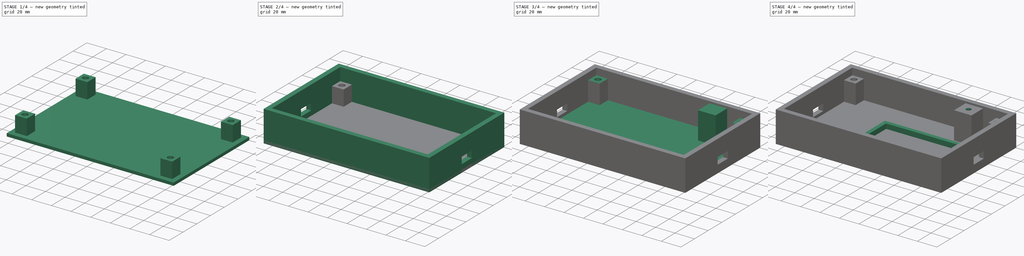
[diagram: build sequence overview — one tinted view per stage of 4, left to right]
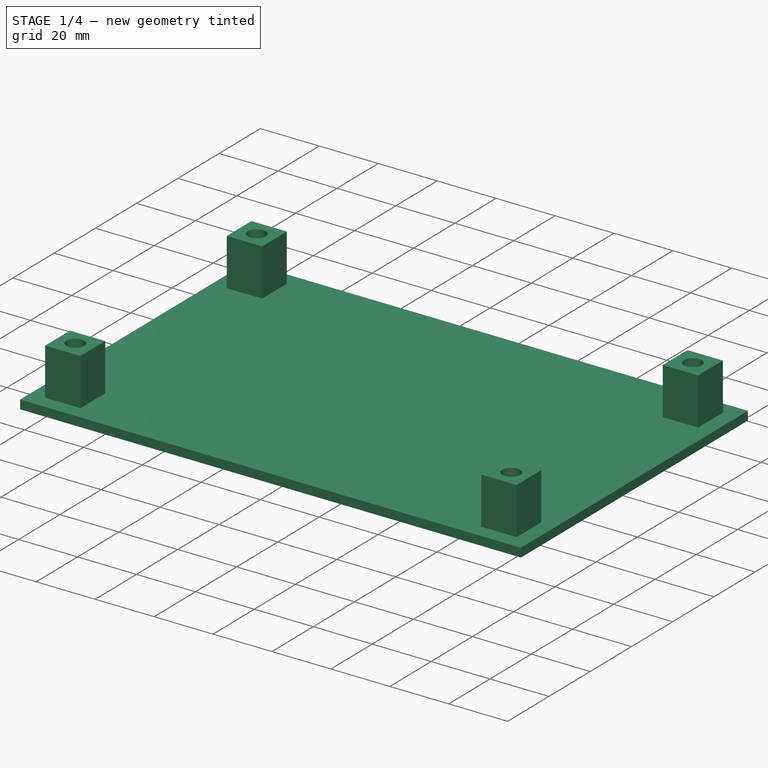
[diagram: stage 1 of 4 — iso view after this stage's code; geometry added in this stage tinted green]
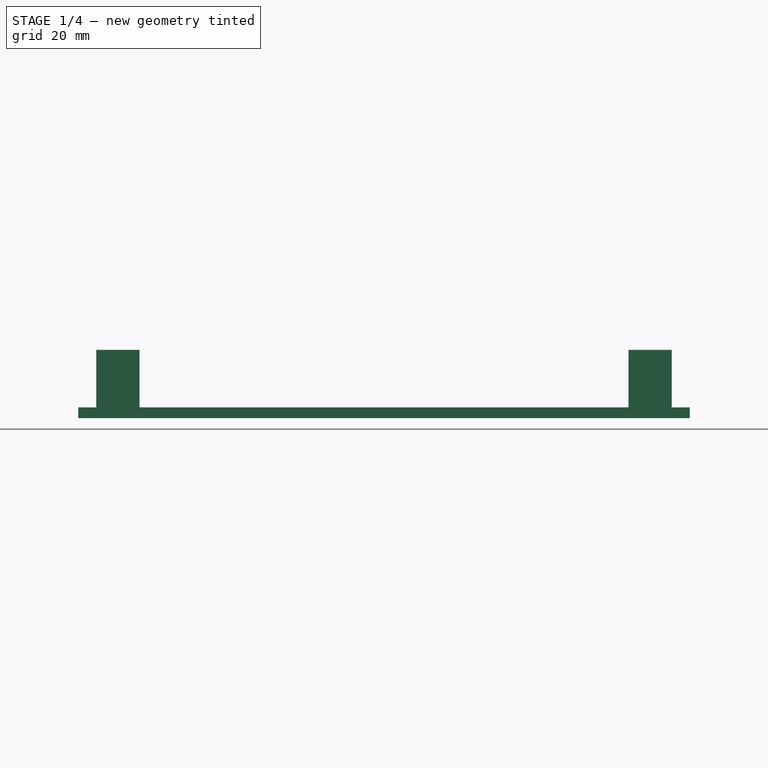
[diagram: stage 1 of 4 — front view after this stage's code; geometry added in this stage tinted green]
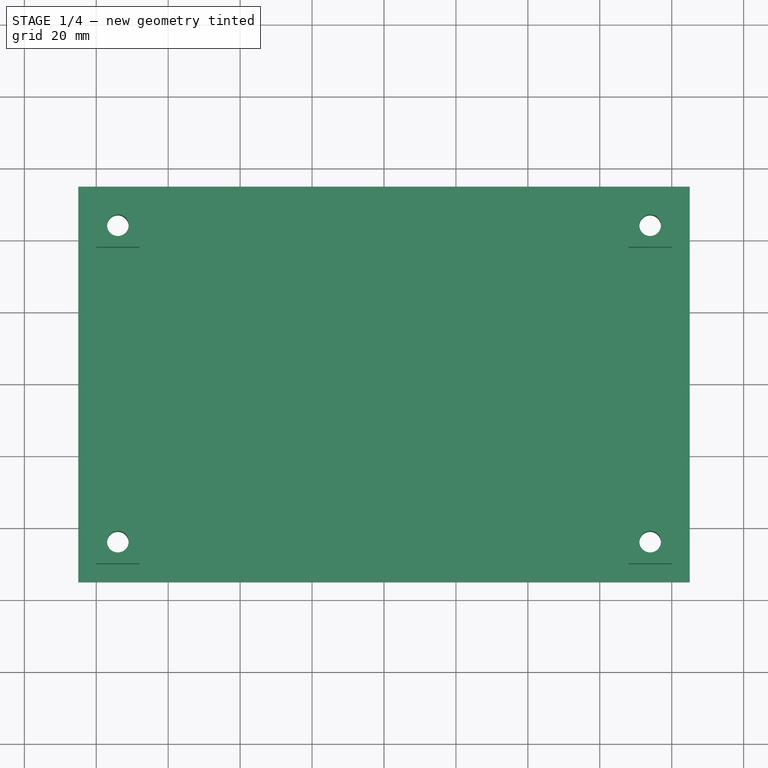
[diagram: stage 1 of 4 — top view after this stage's code; geometry added in this stage tinted green]
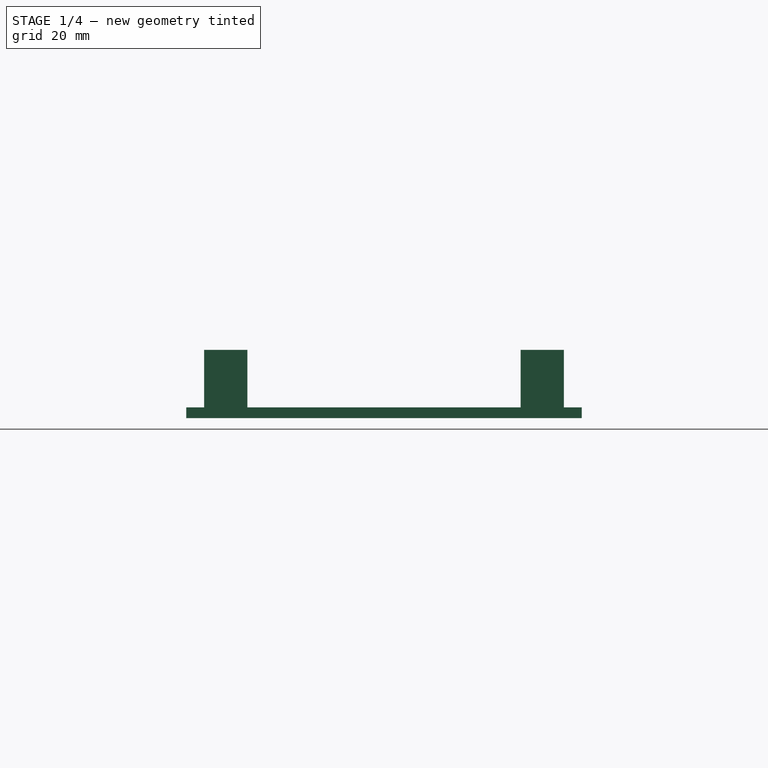
[diagram: stage 1 of 4 — right view after this stage's code; geometry added in this stage tinted green]
FCSTD DOCUMENT  (FreeCAD 0.18.4R)
Label: innovate_lc2_case
License: All rights reserved
LicenseURL: http://en.wikipedia.org/wiki/All_rights_reserved
objects: Sketcher::SketchObject×13, PartDesign::Pad×8, PartDesign::Pocket×5, PartDesign::Body×3, PartDesign::ShapeBinder×1
note: 43 computed .brp shape members not serialized (recipe doc carries the construction recipe); baked Part::Feature solids carry a one-line shape summary decoded from their .brp

FEATURE [PartDesign::Body] Body001  label="SidePanels"
  Group = -> [Sketch007,Pad004,Sketch008,Pocket003]
  Origin = -> Origin001
  Placement = pos=(0,0,5) rot=(0,0,1;0rad)
  Tip = -> Pocket003
FEATURE [Sketcher::SketchObject] Sketch009
  MapMode = 5
  Support = -> [XY_Plane002]
  sketch-geometry (4):
    g0: LineSegment StartX=-85 StartY=55 StartZ=0 EndX=85 EndY=55 EndZ=0
    g1: LineSegment StartX=85 StartY=55 StartZ=0 EndX=85 EndY=-55 EndZ=0
    g2: LineSegment StartX=85 StartY=-55 StartZ=0 EndX=-85 EndY=-55 EndZ=0
    g3: LineSegment StartX=-85 StartY=-55 StartZ=0 EndX=-85 EndY=55 EndZ=0
  constraints (10):
    c: Coincident(g0,g1)
    c: Coincident(g1,g2)
    c: Coincident(g2,g3)
    c: Coincident(g3,g0)
    c: Horizontal(g2)
    c: Vertical(g3)
    c: Symmetric(g0,g0,g-2)
    c: Symmetric(g0,g1,g-1)
    c: DistanceY(g1,g1) = 110
    c: DistanceX(g2,g2) = 170
FEATURE [PartDesign::Pad] Pad005  label="BottomFlat001"
  Length = 3
  Length2 = 100
  Profile = -> Sketch009
  Type = 0
FEATURE [Sketcher::SketchObject] Sketch010
  ExternalGeometry = -> [Pad005]
  MapMode = 5
  Placement = pos=(0,0,3) rot=(0,0,1;0rad)
  Support = -> [Pad005]
  sketch-geometry (20):
    g0: LineSegment [constr] StartX=-80 StartY=50 StartZ=0 EndX=80 EndY=50 EndZ=0
    g1: LineSegment [constr] StartX=80 StartY=50 StartZ=0 EndX=80 EndY=-50 EndZ=0
    g2: LineSegment [constr] StartX=80 StartY=-50 StartZ=0 EndX=-80 EndY=-50 EndZ=0
    g3: LineSegment [constr] StartX=-80 StartY=-50 StartZ=0 EndX=-80 EndY=50 EndZ=0
    g4: LineSegment StartX=-80 StartY=50 StartZ=0 EndX=-68 EndY=50 EndZ=0
    g5: LineSegment StartX=-68 StartY=50 StartZ=0 EndX=-68 EndY=38 EndZ=0
    g6: LineSegment StartX=-68 StartY=38 StartZ=0 EndX=-80 EndY=38 EndZ=0
    g7: LineSegment StartX=-80 StartY=38 StartZ=0 EndX=-80 EndY=50 EndZ=0
    g8: LineSegment StartX=-80 StartY=-50 StartZ=0 EndX=-68 EndY=-50 EndZ=0
    g9: LineSegment StartX=-68 StartY=-50 StartZ=0 EndX=-68 EndY=-38 EndZ=0
    g10: LineSegment StartX=-68 StartY=-38 StartZ=0 EndX=-80 EndY=-38 EndZ=0
    g11: LineSegment StartX=-80 StartY=-38 StartZ=0 EndX=-80 EndY=-50 EndZ=0
    g12: LineSegment StartX=80 StartY=50 StartZ=0 EndX=68 EndY=50 EndZ=0
    g13: LineSegment StartX=68 StartY=50 StartZ=0 EndX=68 EndY=38 EndZ=0
    g14: LineSegment StartX=68 StartY=38 StartZ=0 EndX=80 EndY=38 EndZ=0
    g15: LineSegment StartX=80 StartY=38 StartZ=0 EndX=80 EndY=50 EndZ=0
    g16: LineSegment StartX=80 StartY=-50 StartZ=0 EndX=68 EndY=-50 EndZ=0
    g17: LineSegment StartX=68 StartY=-50 StartZ=0 EndX=68 EndY=-38 EndZ=0
    g18: LineSegment StartX=68 StartY=-38 StartZ=0 EndX=80 EndY=-38 EndZ=0
    g19: LineSegment StartX=80 StartY=-38 StartZ=0 EndX=80 EndY=-50 EndZ=0
  constraints (52):
    c: Coincident(g0,g1)
    c: Coincident(g1,g2)
    c: Coincident(g2,g3)
    c: Coincident(g3,g0)
    c: Horizontal(g2)
    c: Vertical(g3)
    c: Symmetric(g0,g0,g-2)
    c: Symmetric(g0,g1,g-1)
    c: DistanceX(g0,g-4) = 5
    c: DistanceY(g0,g-6) = 5
    c: Coincident(g4,g5)
    c: Coincident(g5,g6)
    c: Coincident(g6,g7)
    c: Coincident(g7,g4)
    c: Horizontal(g4)
    c: Horizontal(g6)
    c: Vertical(g5)
    c: Vertical(g7)
    c: Coincident(g4,g0)
    c: Coincident(g8,g9)
    c: Coincident(g9,g10)
    c: Coincident(g10,g11)
    c: Coincident(g11,g8)
    c: Horizontal(g8)
    c: Horizontal(g10)
    c: Vertical(g9)
    c: Vertical(g11)
    c: Coincident(g8,g2)
    c: Coincident(g12,g13)
    c: Coincident(g13,g14)
    c: Coincident(g14,g15)
    c: Coincident(g15,g12)
    c: Horizontal(g12)
    c: Horizontal(g14)
    c: Vertical(g13)
    c: Vertical(g15)
    c: Coincident(g12,g0)
    c: Coincident(g16,g17)
    c: Coincident(g17,g18)
    c: Coincident(g18,g19)
    c: Coincident(g19,g16)
    c: Horizontal(g16)
    c: Horizontal(g18)
    c: Vertical(g17)
    c: Vertical(g19)
    c: Coincident(g16,g1)
    c: DistanceY(g5,g5) = 12
    c: DistanceX(g6,g6) = 12
    c: Symmetric(g5,g13,g-2)
    c: Symmetric(g9,g5,g-1)
    c: Vertical(g13,g17)
    c: Horizontal(g17,g9)
FEATURE [PartDesign::Pad] Pad006  label="PillarsForScrews001"
  BaseFeature = -> Pad005
  Length = 16
  Length2 = 100
  Profile = -> Sketch010
  Type = 0
FEATURE [Sketcher::SketchObject] Sketch011
  ExternalGeometry = -> [Pad006]
  MapMode = 5
  Placement = pos=(0,0,19) rot=(0,0,1;0rad)
  Support = -> [Pad006]
  sketch-geometry (6):
    g0: Circle CenterX=-74 CenterY=44 CenterZ=0 NormalX=0 NormalY=0 NormalZ=1 AngleXU=0 Radius=3
    g1: Circle CenterX=74 CenterY=44 CenterZ=0 NormalX=0 NormalY=0 NormalZ=1 AngleXU=0 Radius=3
    g2: Circle CenterX=-74 CenterY=-44 CenterZ=0 NormalX=0 NormalY=0 NormalZ=1 AngleXU=0 Radius=3
    g3: Circle CenterX=74 CenterY=-44 CenterZ=0 NormalX=0 NormalY=0 NormalZ=1 AngleXU=0 Radius=3
    g4: LineSegment [constr] StartX=-68 StartY=50 StartZ=0 EndX=-74 EndY=44 EndZ=0
    g5: LineSegment [constr] StartX=-74 StartY=44 StartZ=0 EndX=-80 EndY=38 EndZ=0
  constraints (12):
    c: Symmetric(g1,g0,g-2)
    c: Equal(g0,g1)
    c: Symmetric(g2,g0,g-1)
    c: Equal(g2,g0)
    c: Symmetric(g3,g1,g-1)
    c: Equal(g3,g1)
    c: Coincident(g4,g-4)
    c: Coincident(g4,g0)
    c: Coincident(g5,g0)
    c: Coincident(g5,g-6)
    c: Parallel(g5,g4)
    c: Equal(g4,g5)
FEATURE [PartDesign::Pocket] Pocket004  label="HolesForPillarsScrews001"
  BaseFeature = -> Pad006
  Length = 10
  Length2 = 100
  Profile = -> Sketch011
  Type = 1
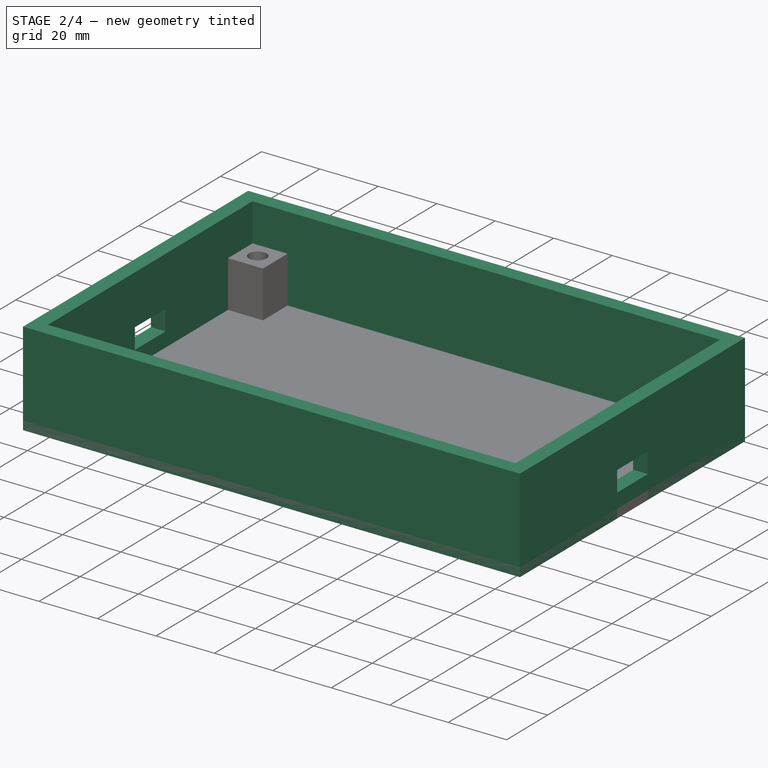
[diagram: stage 2 of 4 — iso view after this stage's code; geometry added in this stage tinted green]
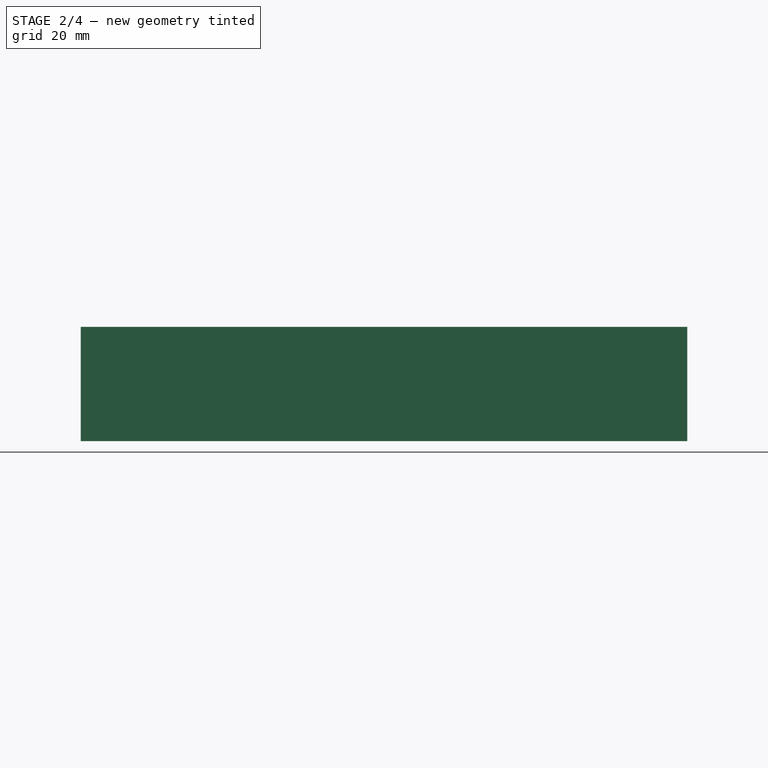
[diagram: stage 2 of 4 — front view after this stage's code; geometry added in this stage tinted green]
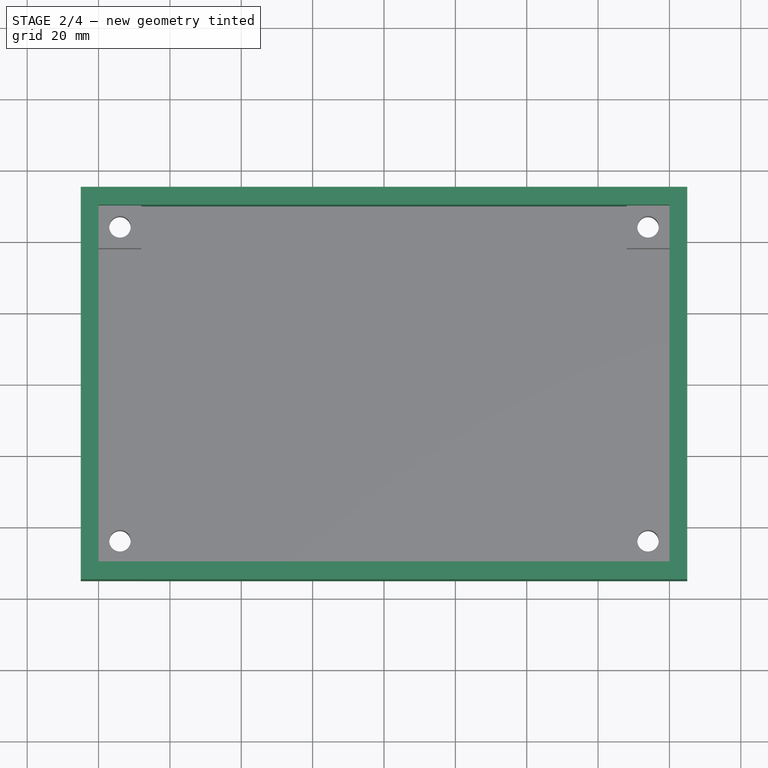
[diagram: stage 2 of 4 — top view after this stage's code; geometry added in this stage tinted green]
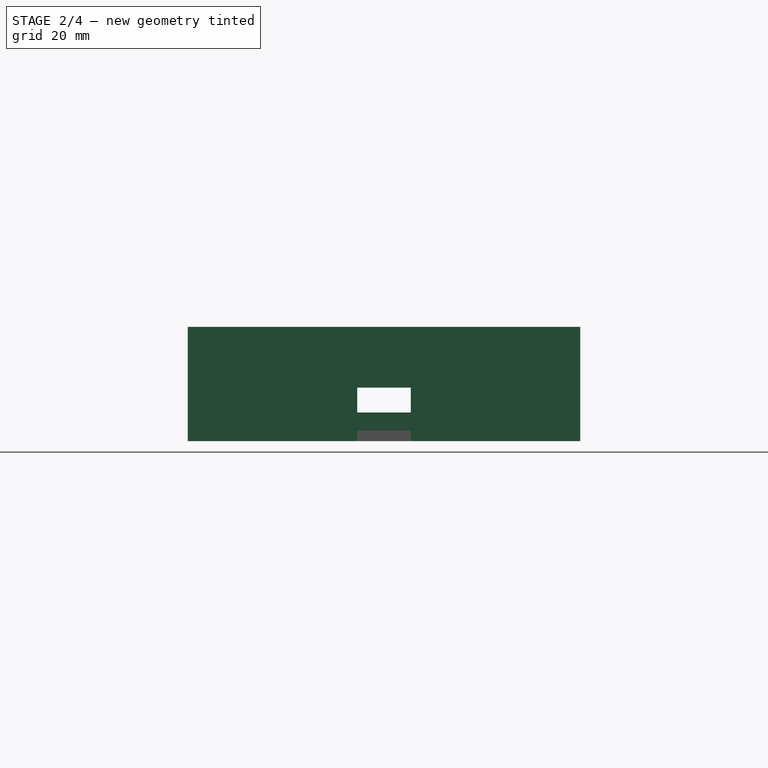
[diagram: stage 2 of 4 — right view after this stage's code; geometry added in this stage tinted green]
FEATURE [Sketcher::SketchObject] Sketch007
  MapMode = 5
  Support = -> [XY_Plane001]
  sketch-geometry (8):
    g0: LineSegment StartX=-85 StartY=55 StartZ=0 EndX=85 EndY=55 EndZ=0
    g1: LineSegment StartX=85 StartY=55 StartZ=0 EndX=85 EndY=-55 EndZ=0
    g2: LineSegment StartX=85 StartY=-55 StartZ=0 EndX=-85 EndY=-55 EndZ=0
    g3: LineSegment StartX=-85 StartY=-55 StartZ=0 EndX=-85 EndY=55 EndZ=0
    g4: LineSegment StartX=-80 StartY=50 StartZ=0 EndX=80 EndY=50 EndZ=0
    g5: LineSegment StartX=80 StartY=50 StartZ=0 EndX=80 EndY=-50 EndZ=0
    g6: LineSegment StartX=80 StartY=-50 StartZ=0 EndX=-80 EndY=-50 EndZ=0
    g7: LineSegment StartX=-80 StartY=-50 StartZ=0 EndX=-80 EndY=50 EndZ=0
  constraints (20):
    c: Coincident(g0,g1)
    c: Coincident(g1,g2)
    c: Coincident(g2,g3)
    c: Coincident(g3,g0)
    c: Horizontal(g2)
    c: Vertical(g3)
    c: Symmetric(g0,g0,g-2)
    c: Symmetric(g0,g1,g-1)
    c: DistanceX(g0,g0) = 170
    c: DistanceY(g1,g1) = 110
    c: Coincident(g4,g5)
    c: Coincident(g5,g6)
    c: Coincident(g6,g7)
    c: Coincident(g7,g4)
    c: Horizontal(g6)
    c: Vertical(g7)
    c: Symmetric(g4,g4,g-2)
    c: Symmetric(g4,g5,g-1)
    c: DistanceY(g4,g0) = 5
    c: DistanceX(g4,g0) = 5
FEATURE [PartDesign::Pad] Pad004  label="FrameAroundCase"
  Length = 32
  Length2 = 100
  Profile = -> Sketch007
  Type = 0
FEATURE [Sketcher::SketchObject] Sketch008
  MapMode = 5
  Placement = pos=(85,0,0) rot=(0.57735,0.57735,0.57735;2.0944rad)
  Support = -> [Pad004]
  sketch-geometry (4):
    g0: LineSegment StartX=-7.5 StartY=0 StartZ=0 EndX=7.5 EndY=0 EndZ=0
    g1: LineSegment StartX=7.5 StartY=0 StartZ=0 EndX=7.5 EndY=15 EndZ=0
    g2: LineSegment StartX=7.5 StartY=15 StartZ=0 EndX=-7.5 EndY=15 EndZ=0
    g3: LineSegment StartX=-7.5 StartY=15 StartZ=0 EndX=-7.5 EndY=0 EndZ=0
  constraints (11):
    c: Coincident(g0,g1)
    c: Coincident(g1,g2)
    c: Coincident(g2,g3)
    c: Coincident(g3,g0)
    c: Vertical(g1)
    c: PointOnObject(g0,g-1)
    c: DistanceY(g1,g1) = 15
    c: DistanceX(g2,g2) = 15
    c: Equal(g1,g3)
    c: Equal(g2,g0)
    c: Symmetric(g0,g0,g-2)
FEATURE [PartDesign::Pocket] Pocket003
  BaseFeature = -> Pad004
  Length = 5
  Length2 = 100
  Profile = -> Sketch008
  Type = 1
FEATURE [PartDesign::ShapeBinder] CopyPocket004
  TraceSupport = false
FEATURE [PartDesign::Body] Body  label="BottomMountingPlateBody"
  Group = -> [Sketch,Pad,Sketch001,Pad001,Sketch002,Pocket,Sketch003,Pad002,Sketch004,Pocket001,Sketch005,Pad003,Sketch006,Pocket002,CopyPocket004]
  Origin = -> Origin
  Tip = -> Pocket002
FEATURE [Sketcher::SketchObject] Sketch012
  ExternalGeometry = -> [Pocket004]
  MapMode = 5
  Support = -> [XY_Plane002]
  sketch-geometry (8):
    g0: LineSegment StartX=-85 StartY=55 StartZ=0 EndX=85 EndY=55 EndZ=0
    g1: LineSegment StartX=85 StartY=55 StartZ=0 EndX=85 EndY=-55 EndZ=0
    g2: LineSegment StartX=85 StartY=-55 StartZ=0 EndX=-85 EndY=-55 EndZ=0
    g3: LineSegment StartX=-85 StartY=-55 StartZ=0 EndX=-85 EndY=55 EndZ=0
    g4: LineSegment StartX=-80 StartY=50 StartZ=0 EndX=80 EndY=50 EndZ=0
    g5: LineSegment StartX=80 StartY=50 StartZ=0 EndX=80 EndY=-50 EndZ=0
    g6: LineSegment StartX=80 StartY=-50 StartZ=0 EndX=-80 EndY=-50 EndZ=0
    g7: LineSegment StartX=-80 StartY=-50 StartZ=0 EndX=-80 EndY=50 EndZ=0
  constraints (20):
    c: Coincident(g0,g1)
    c: Coincident(g1,g2)
    c: Coincident(g2,g3)
    c: Coincident(g3,g0)
    c: Horizontal(g0)
    c: Horizontal(g2)
    c: Vertical(g1)
    c: Vertical(g3)
    c: Coincident(g0,g-4)
    c: Coincident(g1,g-6)
    c: Coincident(g4,g5)
    c: Coincident(g5,g6)
    c: Coincident(g6,g7)
    c: Coincident(g7,g4)
    c: Horizontal(g4)
    c: Horizontal(g6)
    c: Vertical(g5)
    c: Vertical(g7)
    c: Coincident(g4,g-14)
    c: Coincident(g5,g-10)
FEATURE [PartDesign::Pad] Pad007  label="TopFrame"
  BaseFeature = -> Pocket004
  Length = 8
  Length2 = 100
  Profile = -> Sketch012
  Type = 0
FEATURE [PartDesign::Body] Body002  label="TopCover"
  Group = -> [Sketch009,Pad005,Sketch010,Pad006,Sketch011,Pocket004,Sketch012,Pad007]
  Origin = -> Origin002
  Placement = pos=(0,2e-14,45) rot=(1,0,0;3.14159rad)
  Tip = -> Pad007
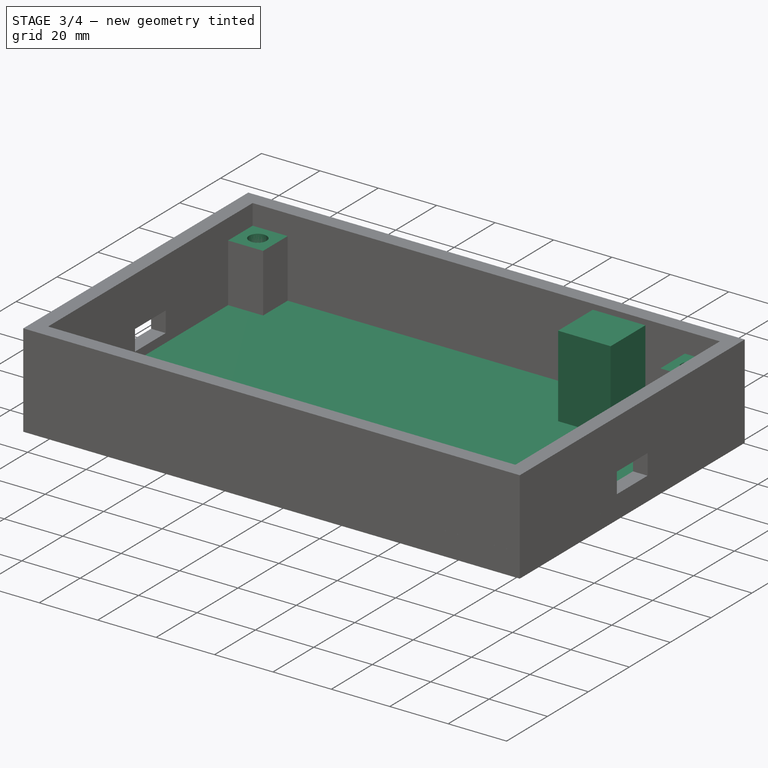
[diagram: stage 3 of 4 — iso view after this stage's code; geometry added in this stage tinted green]
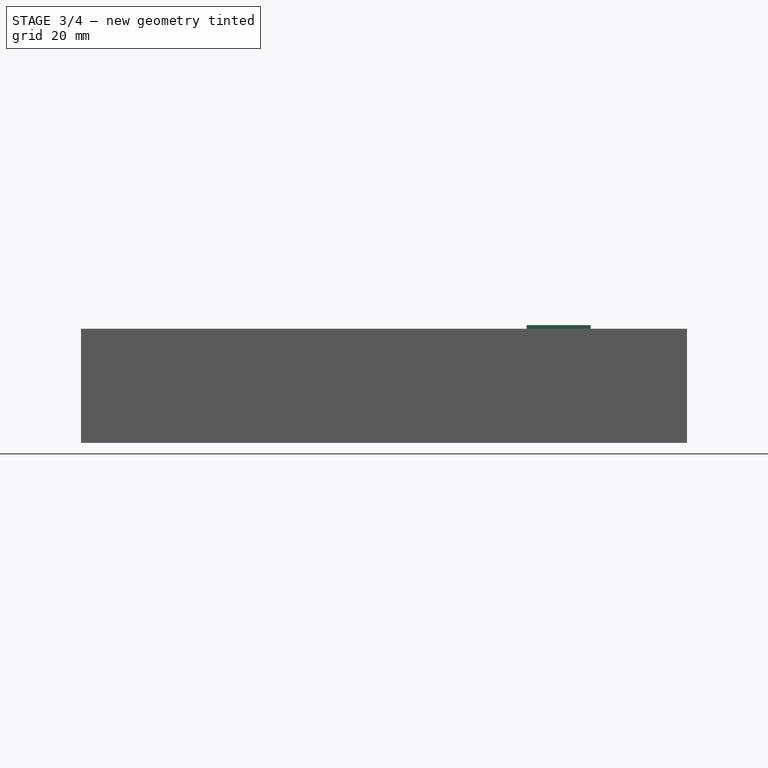
[diagram: stage 3 of 4 — front view after this stage's code; geometry added in this stage tinted green]
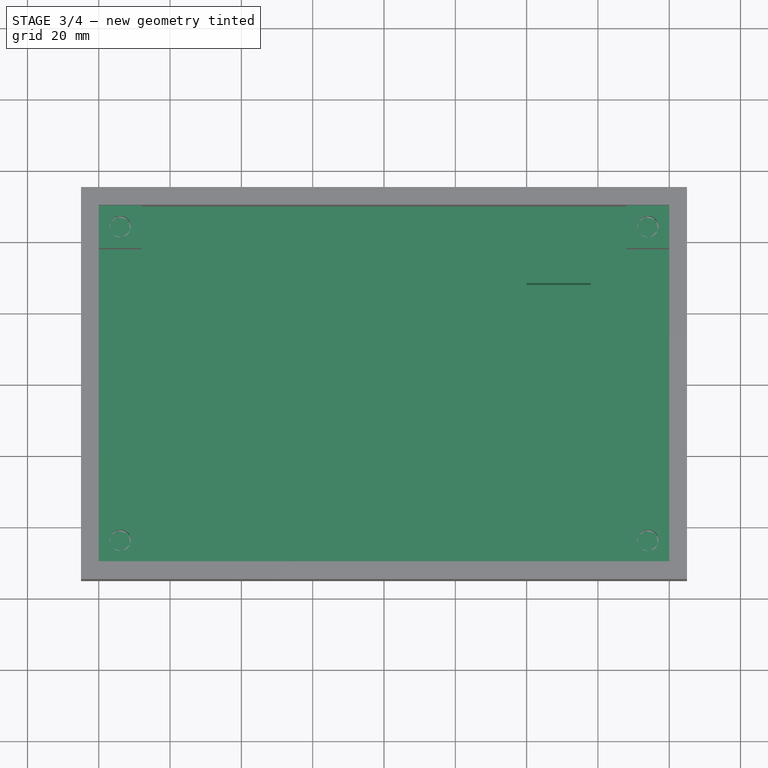
[diagram: stage 3 of 4 — top view after this stage's code; geometry added in this stage tinted green]
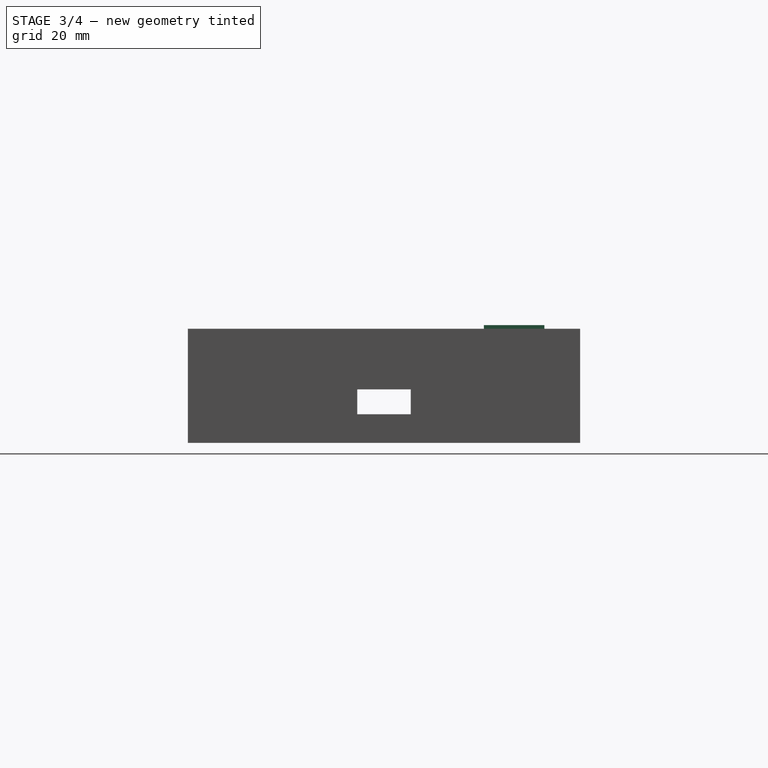
[diagram: stage 3 of 4 — right view after this stage's code; geometry added in this stage tinted green]
FEATURE [Sketcher::SketchObject] Sketch
  MapMode = 5
  Support = -> [XY_Plane]
  sketch-geometry (4):
    g0: LineSegment StartX=-85 StartY=55 StartZ=0 EndX=85 EndY=55 EndZ=0
    g1: LineSegment StartX=85 StartY=55 StartZ=0 EndX=85 EndY=-55 EndZ=0
    g2: LineSegment StartX=85 StartY=-55 StartZ=0 EndX=-85 EndY=-55 EndZ=0
    g3: LineSegment StartX=-85 StartY=-55 StartZ=0 EndX=-85 EndY=55 EndZ=0
  constraints (10):
    c: Coincident(g0,g1)
    c: Coincident(g1,g2)
    c: Coincident(g2,g3)
    c: Coincident(g3,g0)
    c: Horizontal(g2)
    c: Vertical(g3)
    c: Symmetric(g0,g0,g-2)
    c: Symmetric(g0,g1,g-1)
    c: DistanceY(g1,g1) = 110
    c: DistanceX(g2,g2) = 170
FEATURE [PartDesign::Pad] Pad  label="BottomFlat"
  Length = 5
  Length2 = 100
  Profile = -> Sketch
  Type = 0
FEATURE [Sketcher::SketchObject] Sketch001
  ExternalGeometry = -> [Pad]
  MapMode = 5
  Placement = pos=(0,0,5) rot=(0,0,1;0rad)
  Support = -> [Pad]
  sketch-geometry (20):
    g0: LineSegment [constr] StartX=-80 StartY=50 StartZ=0 EndX=80 EndY=50 EndZ=0
    g1: LineSegment [constr] StartX=80 StartY=50 StartZ=0 EndX=80 EndY=-50 EndZ=0
    g2: LineSegment [constr] StartX=80 StartY=-50 StartZ=0 EndX=-80 EndY=-50 EndZ=0
    g3: LineSegment [constr] StartX=-80 StartY=-50 StartZ=0 EndX=-80 EndY=50 EndZ=0
    g4: LineSegment StartX=-80 StartY=50 StartZ=0 EndX=-68 EndY=50 EndZ=0
    g5: LineSegment StartX=-68 StartY=50 StartZ=0 EndX=-68 EndY=38 EndZ=0
    g6: LineSegment StartX=-68 StartY=38 StartZ=0 EndX=-80 EndY=38 EndZ=0
    g7: LineSegment StartX=-80 StartY=38 StartZ=0 EndX=-80 EndY=50 EndZ=0
    g8: LineSegment StartX=-80 StartY=-50 StartZ=0 EndX=-68 EndY=-50 EndZ=0
    g9: LineSegment StartX=-68 StartY=-50 StartZ=0 EndX=-68 EndY=-38 EndZ=0
    g10: LineSegment StartX=-68 StartY=-38 StartZ=0 EndX=-80 EndY=-38 EndZ=0
    g11: LineSegment StartX=-80 StartY=-38 StartZ=0 EndX=-80 EndY=-50 EndZ=0
    g12: LineSegment StartX=80 StartY=50 StartZ=0 EndX=68 EndY=50 EndZ=0
    g13: LineSegment StartX=68 StartY=50 StartZ=0 EndX=68 EndY=38 EndZ=0
    g14: LineSegment StartX=68 StartY=38 StartZ=0 EndX=80 EndY=38 EndZ=0
    g15: LineSegment StartX=80 StartY=38 StartZ=0 EndX=80 EndY=50 EndZ=0
    g16: LineSegment StartX=80 StartY=-50 StartZ=0 EndX=68 EndY=-50 EndZ=0
    g17: LineSegment StartX=68 StartY=-50 StartZ=0 EndX=68 EndY=-38 EndZ=0
    g18: LineSegment StartX=68 StartY=-38 StartZ=0 EndX=80 EndY=-38 EndZ=0
    g19: LineSegment StartX=80 StartY=-38 StartZ=0 EndX=80 EndY=-50 EndZ=0
  constraints (52):
    c: Coincident(g0,g1)
    c: Coincident(g1,g2)
    c: Coincident(g2,g3)
    c: Coincident(g3,g0)
    c: Horizontal(g2)
    c: Vertical(g3)
    c: Symmetric(g0,g0,g-2)
    c: Symmetric(g0,g1,g-1)
    c: DistanceX(g0,g-4) = 5
    c: DistanceY(g0,g-6) = 5
    c: Coincident(g4,g5)
    c: Coincident(g5,g6)
    c: Coincident(g6,g7)
    c: Coincident(g7,g4)
    c: Horizontal(g4)
    c: Horizontal(g6)
    c: Vertical(g5)
    c: Vertical(g7)
    c: Coincident(g4,g0)
    c: Coincident(g8,g9)
    c: Coincident(g9,g10)
    c: Coincident(g10,g11)
    c: Coincident(g11,g8)
    c: Horizontal(g8)
    c: Horizontal(g10)
    c: Vertical(g9)
    c: Vertical(g11)
    c: Coincident(g8,g2)
    c: Coincident(g12,g13)
    c: Coincident(g13,g14)
    c: Coincident(g14,g15)
    c: Coincident(g15,g12)
    c: Horizontal(g12)
    c: Horizontal(g14)
    c: Vertical(g13)
    c: Vertical(g15)
    c: Coincident(g12,g0)
    c: Coincident(g16,g17)
    c: Coincident(g17,g18)
    c: Coincident(g18,g19)
    c: Coincident(g19,g16)
    c: Horizontal(g16)
    c: Horizontal(g18)
    c: Vertical(g17)
    c: Vertical(g19)
    c: Coincident(g16,g1)
    c: DistanceY(g5,g5) = 12
    c: DistanceX(g6,g6) = 12
    c: Symmetric(g5,g13,g-2)
    c: Symmetric(g9,g5,g-1)
    c: Vertical(g13,g17)
    c: Horizontal(g17,g9)
FEATURE [PartDesign::Pad] Pad001  label="PillarsForScrews"
  BaseFeature = -> Pad
  Length = 20
  Length2 = 100
  Profile = -> Sketch001
  Type = 0
FEATURE [Sketcher::SketchObject] Sketch002
  ExternalGeometry = -> [Pad001]
  MapMode = 5
  Placement = pos=(0,0,25) rot=(0,0,1;0rad)
  Support = -> [Pad001]
  sketch-geometry (6):
    g0: Circle CenterX=-74 CenterY=44 CenterZ=0 NormalX=0 NormalY=0 NormalZ=1 AngleXU=0 Radius=3
    g1: Circle CenterX=74 CenterY=44 CenterZ=0 NormalX=0 NormalY=0 NormalZ=1 AngleXU=0 Radius=3
    g2: Circle CenterX=-74 CenterY=-44 CenterZ=0 NormalX=0 NormalY=0 NormalZ=1 AngleXU=0 Radius=3
    g3: Circle CenterX=74 CenterY=-44 CenterZ=0 NormalX=0 NormalY=0 NormalZ=1 AngleXU=0 Radius=3
    g4: LineSegment [constr] StartX=-68 StartY=50 StartZ=0 EndX=-74 EndY=44 EndZ=0
    g5: LineSegment [constr] StartX=-74 StartY=44 StartZ=0 EndX=-80 EndY=38 EndZ=0
  constraints (12):
    c: Symmetric(g1,g0,g-2)
    c: Equal(g0,g1)
    c: Symmetric(g2,g0,g-1)
    c: Equal(g2,g0)
    c: Symmetric(g3,g1,g-1)
    c: Equal(g3,g1)
    c: Coincident(g4,g-4)
    c: Coincident(g4,g0)
    c: Coincident(g5,g0)
    c: Coincident(g5,g-6)
    c: Parallel(g5,g4)
    c: Equal(g4,g5)
FEATURE [PartDesign::Pocket] Pocket  label="HolesForPillarsScrews"
  BaseFeature = -> Pad001
  Length = 10
  Length2 = 100
  Profile = -> Sketch002
  Type = 0
FEATURE [Sketcher::SketchObject] Sketch003
  ExternalGeometry = -> [Pocket]
  MapMode = 5
  Placement = pos=(0,0,5) rot=(0,0,1;0rad)
  Support = -> [Pocket]
  sketch-geometry (4):
    g0: LineSegment StartX=40 StartY=45 StartZ=0 EndX=58 EndY=45 EndZ=0
    g1: LineSegment StartX=58 StartY=45 StartZ=0 EndX=58 EndY=28 EndZ=0
    g2: LineSegment StartX=58 StartY=28 StartZ=0 EndX=40 EndY=28 EndZ=0
    g3: LineSegment StartX=40 StartY=28 StartZ=0 EndX=40 EndY=45 EndZ=0
  constraints (12):
    c: Coincident(g0,g1)
    c: Coincident(g1,g2)
    c: Coincident(g2,g3)
    c: Coincident(g3,g0)
    c: Horizontal(g0)
    c: Horizontal(g2)
    c: Vertical(g1)
    c: Vertical(g3)
    c: DistanceX(g0,g0) = 18
    c: DistanceY(g1,g1) = 17
    c: DistanceY(g0,g-3) = 10
    c: DistanceX(g1,g-4) = 10
FEATURE [PartDesign::Pad] Pad002  label="RelayPillar"
  BaseFeature = -> Pocket
  Length = 28
  Length2 = 100
  Profile = -> Sketch003
  Type = 0
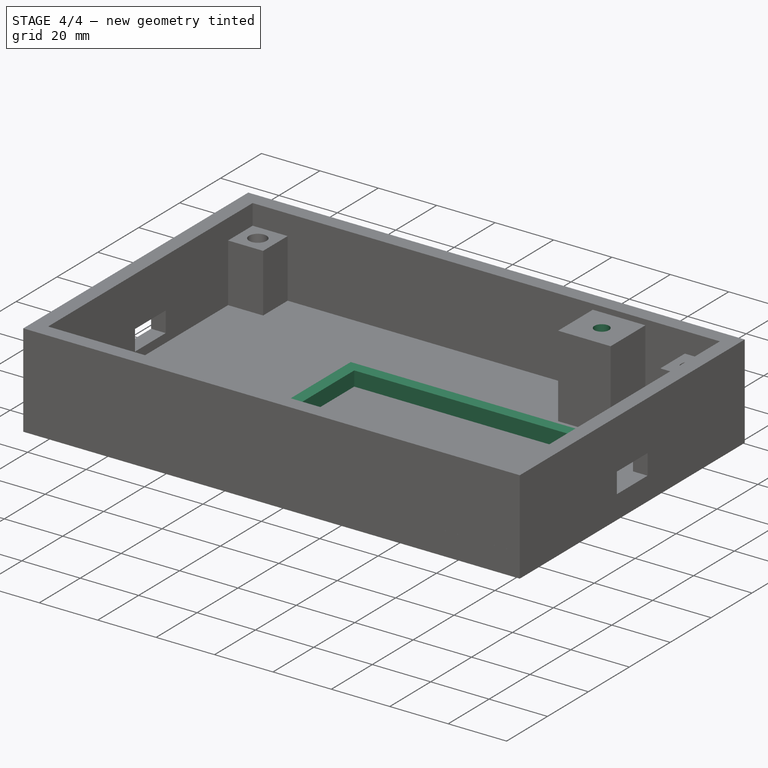
[diagram: stage 4 of 4 — iso view after this stage's code; geometry added in this stage tinted green]
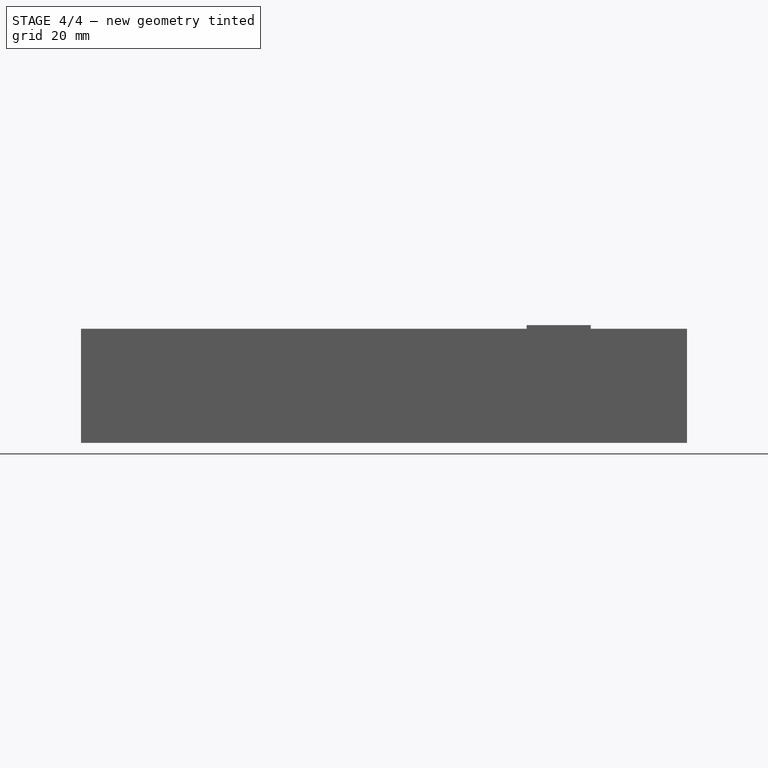
[diagram: stage 4 of 4 — front view after this stage's code; geometry added in this stage tinted green]
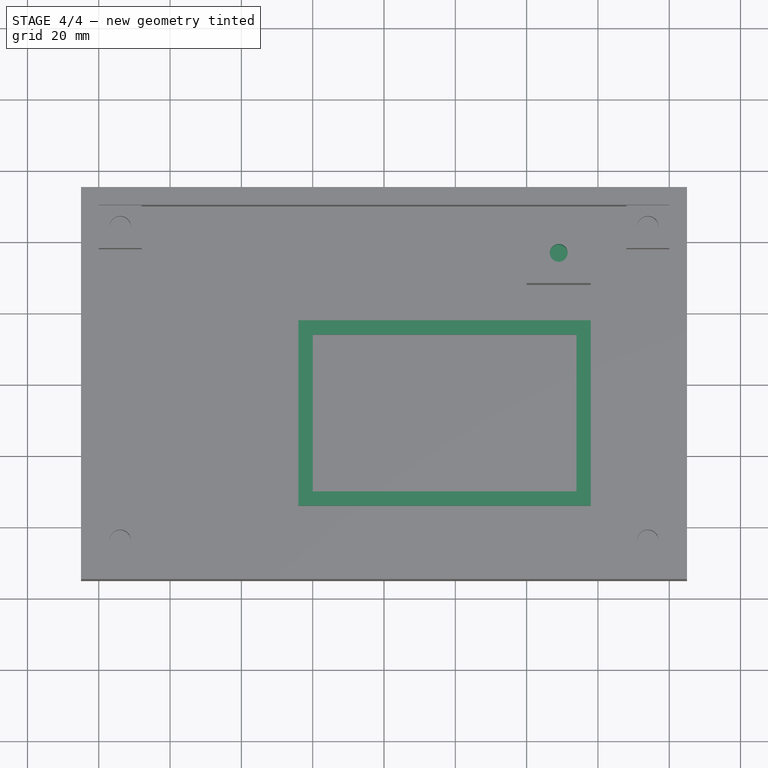
[diagram: stage 4 of 4 — top view after this stage's code; geometry added in this stage tinted green]
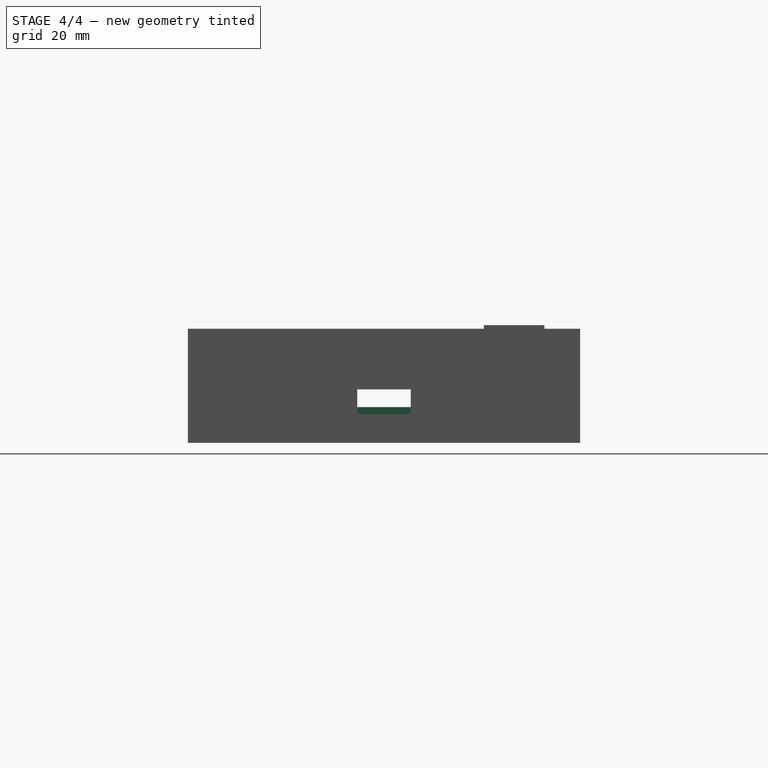
[diagram: stage 4 of 4 — right view after this stage's code; geometry added in this stage tinted green]
FEATURE [Sketcher::SketchObject] Sketch004
  ExternalGeometry = -> [Pad002]
  MapMode = 5
  Placement = pos=(0,0,33) rot=(0,0,1;0rad)
  Support = -> [Pad002]
  sketch-geometry (3):
    g0: Circle CenterX=49 CenterY=36.5 CenterZ=0 NormalX=0 NormalY=0 NormalZ=1 AngleXU=0 Radius=2.5
    g1: LineSegment [constr] StartX=49 StartY=36.5 StartZ=0 EndX=58 EndY=45 EndZ=0
    g2: LineSegment [constr] StartX=49 StartY=36.5 StartZ=0 EndX=40 EndY=28 EndZ=0
  constraints (7):
    c: Coincident(g1,g0)
    c: Coincident(g1,g-6)
    c: Coincident(g2,g0)
    c: Coincident(g2,g-4)
    c: Parallel(g1,g2)
    c: Equal(g1,g2)
    c: Radius(g0) = 2.5
FEATURE [PartDesign::Pocket] Pocket001  label="HoleInRelayPillar"
  BaseFeature = -> Pad002
  Length = 10
  Length2 = 100
  Profile = -> Sketch004
  Type = 0
FEATURE [Sketcher::SketchObject] Sketch005
  ExternalGeometry = -> [Pocket001]
  MapMode = 5
  Placement = pos=(0,0,5) rot=(0,0,1;0rad)
  Support = -> [Pocket001]
  sketch-geometry (8):
    g0: LineSegment [constr] StartX=-20 StartY=14 StartZ=0 EndX=54 EndY=14 EndZ=0
    g1: LineSegment [constr] StartX=54 StartY=14 StartZ=0 EndX=54 EndY=-30 EndZ=0
    g2: LineSegment [constr] StartX=54 StartY=-30 StartZ=0 EndX=-20 EndY=-30 EndZ=0
    g3: LineSegment [constr] StartX=-20 StartY=-30 StartZ=0 EndX=-20 EndY=14 EndZ=0
    g4: LineSegment StartX=-24 StartY=18 StartZ=0 EndX=58 EndY=18 EndZ=0
    g5: LineSegment StartX=58 StartY=18 StartZ=0 EndX=58 EndY=-34 EndZ=0
    g6: LineSegment StartX=58 StartY=-34 StartZ=0 EndX=-24 EndY=-34 EndZ=0
    g7: LineSegment StartX=-24 StartY=-34 StartZ=0 EndX=-24 EndY=18 EndZ=0
  constraints (24):
    c: Coincident(g0,g1)
    c: Coincident(g1,g2)
    c: Coincident(g2,g3)
    c: Coincident(g3,g0)
    c: Horizontal(g2)
    c: Vertical(g1)
    c: Vertical(g3)
    c: DistanceX(g0,g0) = 74
    c: DistanceY(g1,g1) = 44
    c: Coincident(g4,g5)
    c: Coincident(g5,g6)
    c: Coincident(g6,g7)
    c: Coincident(g7,g4)
    c: Horizontal(g6)
    c: Vertical(g5)
    c: Vertical(g7)
    c: DistanceY(g0,g4) = 4
    c: DistanceY(g5,g1) = 4
    c: DistanceX(g0,g4) = 4
    c: DistanceY(g4,g-4) = 10
    c: DistanceX(g4,g0) = 4
    c: Equal(g7,g5)
    c: Equal(g3,g1)
    c: Vertical(g4,g-4)
FEATURE [PartDesign::Pad] Pad003  label="PadForLC2"
  BaseFeature = -> Pocket001
  Length = 5
  Length2 = 100
  Profile = -> Sketch005
  Type = 0
FEATURE [Sketcher::SketchObject] Sketch006
  ExternalGeometry = -> [Pad003]
  MapMode = 5
  Placement = pos=(0,0,10) rot=(0,0,1;0rad)
  Support = -> [Pad003]
  sketch-geometry (4):
    g0: LineSegment StartX=-20 StartY=14 StartZ=0 EndX=54 EndY=14 EndZ=0
    g1: LineSegment StartX=54 StartY=14 StartZ=0 EndX=54 EndY=-30 EndZ=0
    g2: LineSegment StartX=54 StartY=-30 StartZ=0 EndX=-20 EndY=-30 EndZ=0
    g3: LineSegment StartX=-20 StartY=-30 StartZ=0 EndX=-20 EndY=14 EndZ=0
  constraints (12):
    c: Coincident(g0,g1)
    c: Coincident(g1,g2)
    c: Coincident(g2,g3)
    c: Coincident(g3,g0)
    c: Horizontal(g0)
    c: Horizontal(g2)
    c: Vertical(g1)
    c: Vertical(g3)
    c: DistanceY(g0,g-4) = 4
    c: DistanceX(g-5,g0) = 4
    c: DistanceX(g1,g-6) = 4
    c: DistanceY(g-6,g1) = 4
FEATURE [PartDesign::Pocket] Pocket002
  BaseFeature = -> Pad003
  Length = 5
  Length2 = 100
  Profile = -> Sketch006
  Type = 0
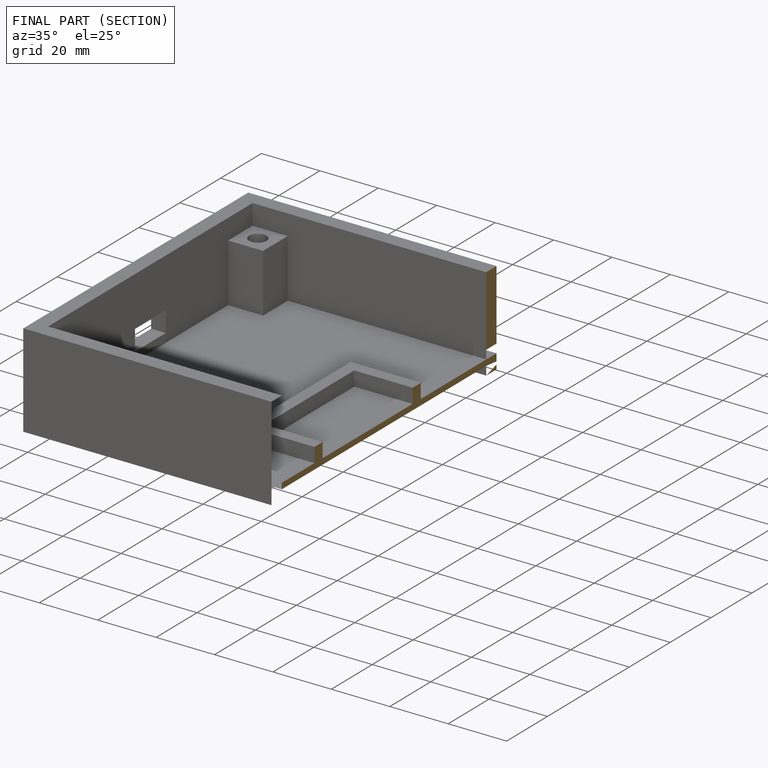
[diagram: finished part — half-section view (interior)]
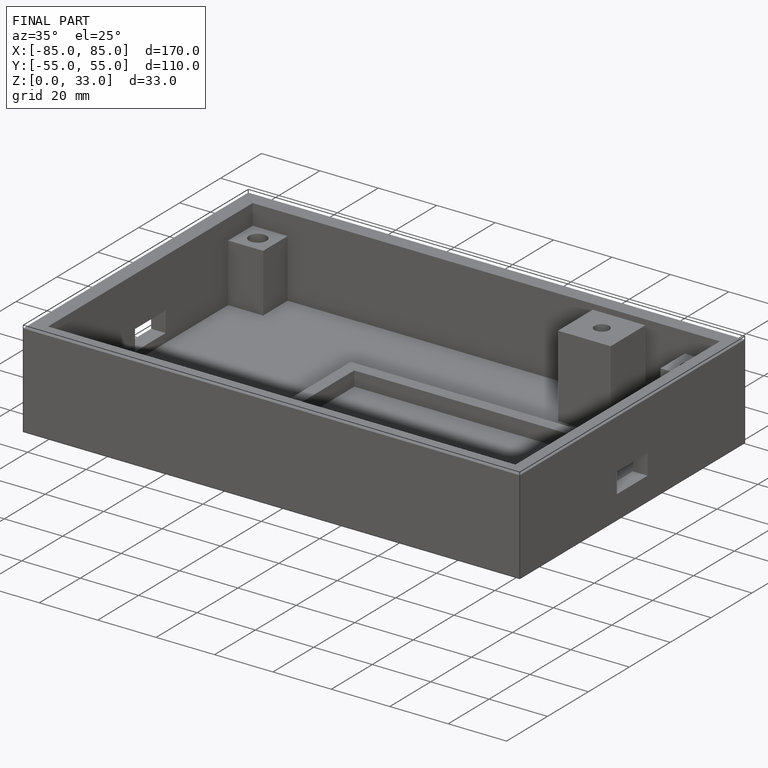
[diagram: finished part — iso view with bounding-box wireframe]
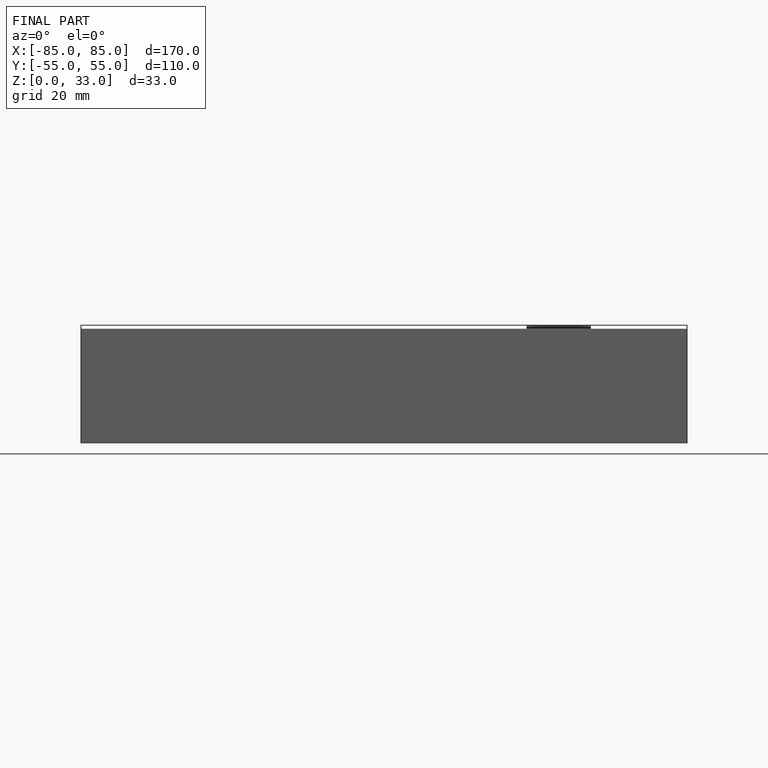
[diagram: finished part — front view with bounding-box wireframe]
